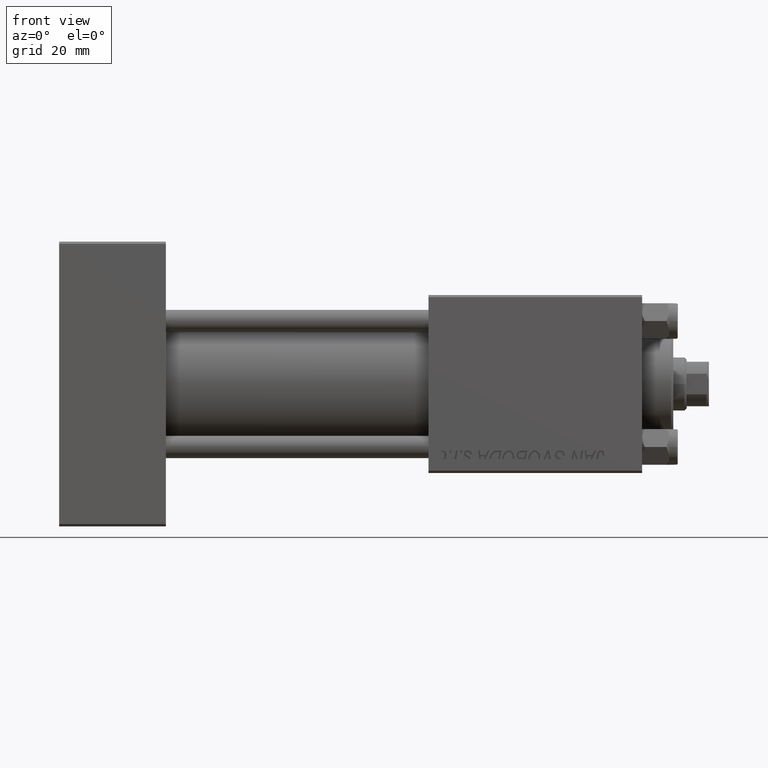
[diagram: clean part render]
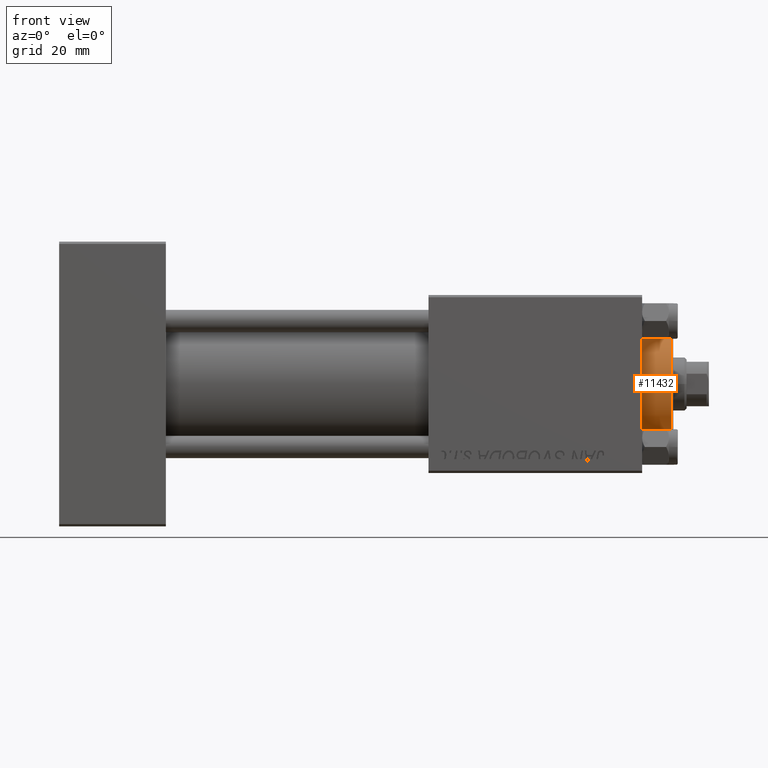
[diagram: same view with one face highlighted and labeled with its STEP entity id]
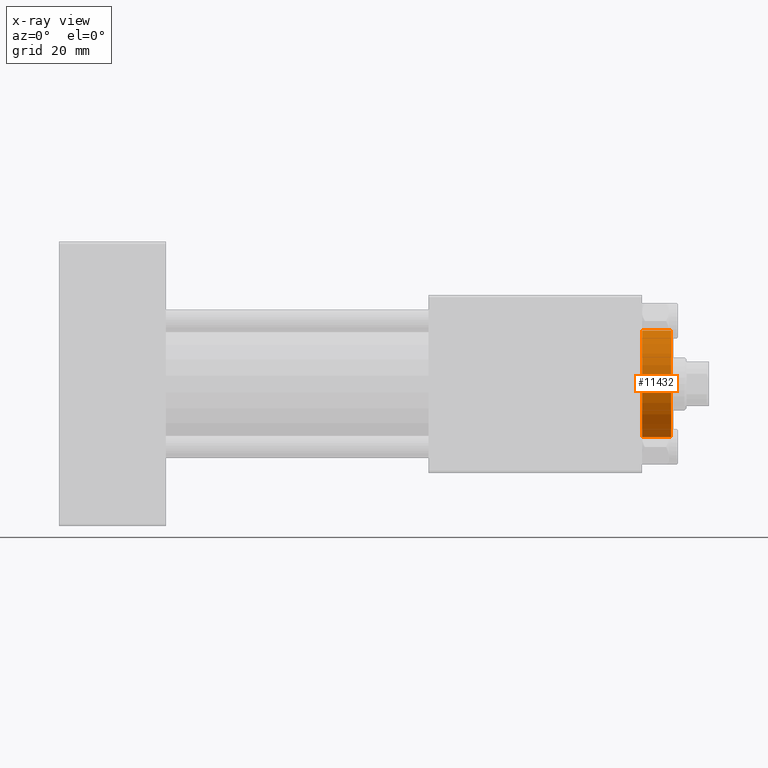
[diagram: x-ray of the same camera — body ghosted, the highlighted face saturated]
A machine part, front view. The second image highlights one B-rep face of the part: STEP entity #11432.
The next image is the same camera in x-ray: the body ghosted, the highlighted face saturated — about 0% of this face is hidden behind the body in this view.
In plain terms, the highlighted cylindrical surface (partial cylindrical patch) has radius 12 mm, axis along (-1, -0, 0).
Its self-contained STEP definition (entity closure, byte-faithful):
#646 = ORIENTED_EDGE ( 'NONE', *, *, #5839, .F. ) ;
#1726 = CIRCLE ( 'NONE', #31573, 12.00000000000000178 ) ;
#3385 = AXIS2_PLACEMENT_3D ( 'NONE', #21446, #5055, #13373 ) ;
#4125 = CARTESIAN_POINT ( 'NONE',  ( 12.00000000000000178, 1.469576158976824144E-15, 28.69999999999999929 ) ) ;
#5055 = DIRECTION ( 'NONE',  ( -0.000000000000000000, -0.000000000000000000, -1.000000000000000000 ) ) ;
#5461 = CARTESIAN_POINT ( 'NONE',  ( 12.00000000000000178, 1.469576158976824144E-15, 35.70000000000000284 ) ) ;
#5715 = VERTEX_POINT ( 'NONE', #11123 ) ;
#5839 = EDGE_CURVE ( 'NONE', #5715, #6948, #24145, .T. ) ;
#6948 = VERTEX_POINT ( 'NONE', #4125 ) ;
#8221 = CARTESIAN_POINT ( 'NONE',  ( -12.00000000000000178, 0.000000000000000000, 35.19999999999999574 ) ) ;
#9884 = EDGE_CURVE ( 'NONE', #34416, #6948, #1726, .T. ) ;
#11123 = CARTESIAN_POINT ( 'NONE',  ( 12.00000000000000178, 1.469576158976824144E-15, 35.19999999999999574 ) ) ;
#11432 = ADVANCED_FACE ( 'NONE', ( #25243 ), #36353, .T. ) ;
#13373 = DIRECTION ( 'NONE',  ( -1.000000000000000000, 0.000000000000000000, 0.000000000000000000 ) ) ;
#13728 = VECTOR ( 'NONE', #16574, 1000.000000000000000 ) ;
#16508 = AXIS2_PLACEMENT_3D ( 'NONE', #39597, #32531, #36308 ) ;
#16574 = DIRECTION ( 'NONE',  ( -0.000000000000000000, -0.000000000000000000, -1.000000000000000000 ) ) ;
#20388 = LINE ( 'NONE', #43362, #26852 ) ;
#20557 = DIRECTION ( 'NONE',  ( 0.000000000000000000, 0.000000000000000000, 1.000000000000000000 ) ) ;
#21446 = CARTESIAN_POINT ( 'NONE',  ( 0.000000000000000000, 0.000000000000000000, 35.70000000000000284 ) ) ;
#24145 = LINE ( 'NONE', #5461, #13728 ) ;
#25243 = FACE_OUTER_BOUND ( 'NONE', #44927, .T. ) ;
#26852 = VECTOR ( 'NONE', #31761, 1000.000000000000000 ) ;
#27422 = VERTEX_POINT ( 'NONE', #8221 ) ;
#31573 = AXIS2_PLACEMENT_3D ( 'NONE', #32436, #20557, #35970 ) ;
#31761 = DIRECTION ( 'NONE',  ( -0.000000000000000000, -0.000000000000000000, -1.000000000000000000 ) ) ;
#31863 = ORIENTED_EDGE ( 'NONE', *, *, #9884, .T. ) ;
#32436 = CARTESIAN_POINT ( 'NONE',  ( 0.000000000000000000, 0.000000000000000000, 28.69999999999999929 ) ) ;
#32531 = DIRECTION ( 'NONE',  ( 0.000000000000000000, 0.000000000000000000, -1.000000000000000000 ) ) ;
#34416 = VERTEX_POINT ( 'NONE', #40884 ) ;
#35970 = DIRECTION ( 'NONE',  ( 1.000000000000000000, 0.000000000000000000, 0.000000000000000000 ) ) ;
#36308 = DIRECTION ( 'NONE',  ( 1.000000000000000000, 0.000000000000000000, 0.000000000000000000 ) ) ;
#36353 = CYLINDRICAL_SURFACE ( 'NONE', #3385, 12.00000000000000178 ) ;
#37469 = CIRCLE ( 'NONE', #16508, 12.00000000000000178 ) ;
#39597 = CARTESIAN_POINT ( 'NONE',  ( 0.000000000000000000, 0.000000000000000000, 35.19999999999999574 ) ) ;
#40884 = CARTESIAN_POINT ( 'NONE',  ( -12.00000000000000178, 0.000000000000000000, 28.69999999999999929 ) ) ;
#43362 = CARTESIAN_POINT ( 'NONE',  ( -12.00000000000000178, 0.000000000000000000, 35.70000000000000284 ) ) ;
#44525 = EDGE_CURVE ( 'NONE', #27422, #34416, #20388, .T. ) ;
#44927 = EDGE_LOOP ( 'NONE', ( #646, #48177, #47346, #31863 ) ) ;
#47346 = ORIENTED_EDGE ( 'NONE', *, *, #44525, .T. ) ;
#48177 = ORIENTED_EDGE ( 'NONE', *, *, #48878, .T. ) ;
#48878 = EDGE_CURVE ( 'NONE', #5715, #27422, #37469, .T. ) ;